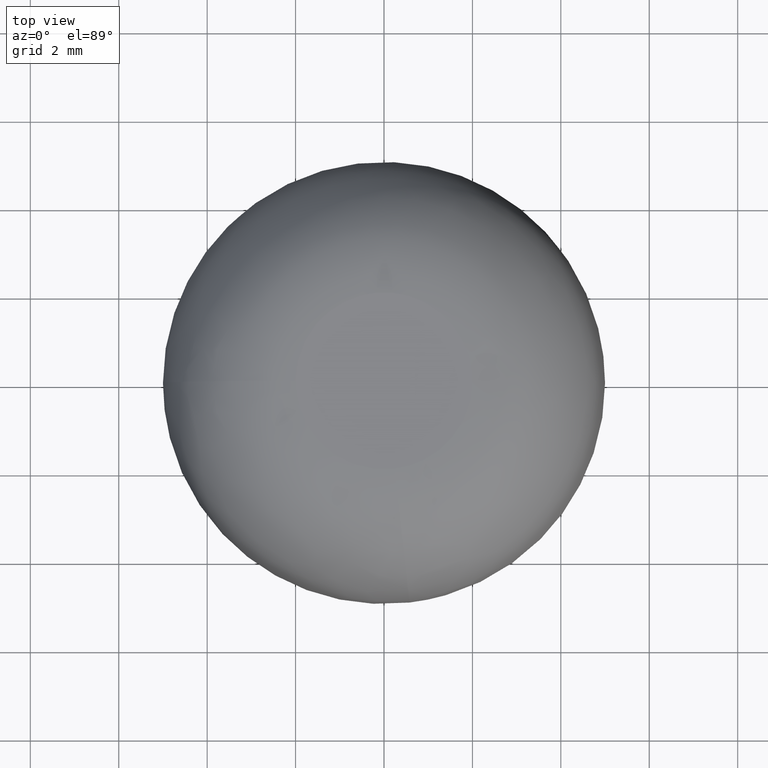
[diagram: clean part render]
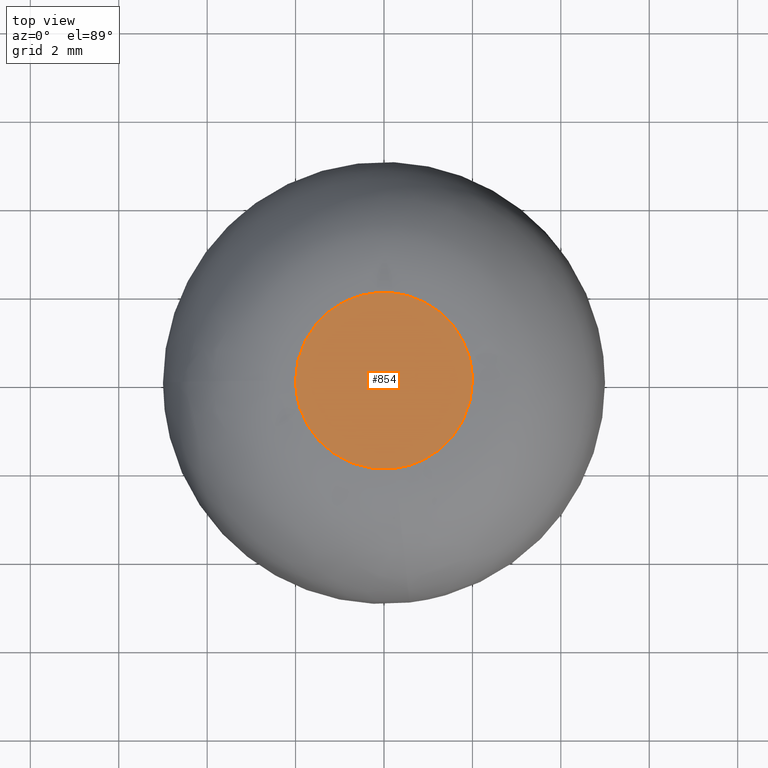
[diagram: same view with one face highlighted and labeled with its STEP entity id]
A machine part, top view. The second image highlights one B-rep face of the part: STEP entity #854.
In plain terms, the highlighted face is a freeform B-spline surface patch.
Its self-contained STEP definition (entity closure, byte-faithful):
#635=CARTESIAN_POINT('',(0.230927431329645,-1.986621064501005,8.599999999998211));
#636=VERTEX_POINT('',#635);
#637=CARTESIAN_POINT('',(-1.999999910256900,0.0,8.599999999999998));
#638=VERTEX_POINT('',#637);
#639=CARTESIAN_POINT('',(0.230927431329646,-1.986621064501006,8.599999999998211));
#640=CARTESIAN_POINT('',(0.115851016147988,-1.999997757965159,8.599999999998257));
#641=CARTESIAN_POINT('',(-0.000000247955235,-1.999997824619911,8.599999999998309));
#642=CARTESIAN_POINT('',(-2.000000069325372,-1.999998975315095,8.599999999999202));
#643=CARTESIAN_POINT('',(-1.999999910256900,0.0,8.599999999999998));
#651=(BOUNDED_CURVE()B_SPLINE_CURVE(2,(#639,#640,#641,#642,#643),.UNSPECIFIED.,.F.,.U.)B_SPLINE_CURVE_WITH_KNOTS((3,2,3),(0.730000064695423,0.750000000000000,1.0),.UNSPECIFIED.)CURVE()GEOMETRIC_REPRESENTATION_ITEM()RATIONAL_B_SPLINE_CURVE((0.956886245526975,0.976568618290326,1.0,0.707106781186548,1.0))REPRESENTATION_ITEM(''));
#652=EDGE_CURVE('',#636,#638,#651,.T.);
#749=CARTESIAN_POINT('',(2.0,0.0,8.600000000000000));
#750=VERTEX_POINT('',#749);
#751=CARTESIAN_POINT('',(2.0,0.0,8.600000000000000));
#752=CARTESIAN_POINT('',(1.999999866241687,-1.780982936703756,8.599999999999104));
#753=CARTESIAN_POINT('',(0.230927431329646,-1.986621064501006,8.599999999998211));
#761=(BOUNDED_CURVE()B_SPLINE_CURVE(2,(#751,#752,#753),.UNSPECIFIED.,.F.,.U.)B_SPLINE_CURVE_WITH_KNOTS((3,3),(0.500000000000000,0.730000064695423),.UNSPECIFIED.)CURVE()GEOMETRIC_REPRESENTATION_ITEM()RATIONAL_B_SPLINE_CURVE((1.0,0.730538162896221,0.956886245526975))REPRESENTATION_ITEM(''));
#762=EDGE_CURVE('',#750,#636,#761,.T.);
#796=CARTESIAN_POINT('',(-1.999999910256900,0.0,8.599999999999998));
#797=CARTESIAN_POINT('',(-2.000000000000000,2.000000000000000,8.600000000000000));
#798=CARTESIAN_POINT('',(0.0,2.0,8.600000000000000));
#799=CARTESIAN_POINT('',(2.000000000000000,2.000000000000000,8.600000000000000));
#800=CARTESIAN_POINT('',(2.0,0.0,8.600000000000000));
#808=(BOUNDED_CURVE()B_SPLINE_CURVE(2,(#796,#797,#798,#799,#800),.UNSPECIFIED.,.F.,.U.)B_SPLINE_CURVE_WITH_KNOTS((3,2,3),(0.0,0.250000000000000,0.500000000000000),.UNSPECIFIED.)CURVE()GEOMETRIC_REPRESENTATION_ITEM()RATIONAL_B_SPLINE_CURVE((1.0,0.707106781186548,1.0,0.707106781186548,1.0))REPRESENTATION_ITEM(''));
#809=EDGE_CURVE('',#638,#750,#808,.T.);
#844=CARTESIAN_POINT('',(-2.199799898021456,-2.199786348233881,8.600000000000000));
#845=CARTESIAN_POINT('',(2.199800095052915,-2.199786348233881,8.600000000000000));
#846=CARTESIAN_POINT('',(-2.199799898021456,2.199799450414795,8.600000000000000));
#847=CARTESIAN_POINT('',(2.199800095052915,2.199799450414795,8.600000000000000));
#848=B_SPLINE_SURFACE_WITH_KNOTS('',1,1,((#844,#846),(#845,#847)),.UNSPECIFIED.,.F.,.F.,.U.,(2,2),(2,2),(0.0,4.399599993074371),(0.0,4.399585798648676),.UNSPECIFIED.);
#849=ORIENTED_EDGE('',*,*,#652,.F.);
#850=ORIENTED_EDGE('',*,*,#762,.F.);
#851=ORIENTED_EDGE('',*,*,#809,.F.);
#852=EDGE_LOOP('',(#849,#850,#851));
#853=FACE_OUTER_BOUND('',#852,.T.);
#854=ADVANCED_FACE('',(#853),#848,.T.);